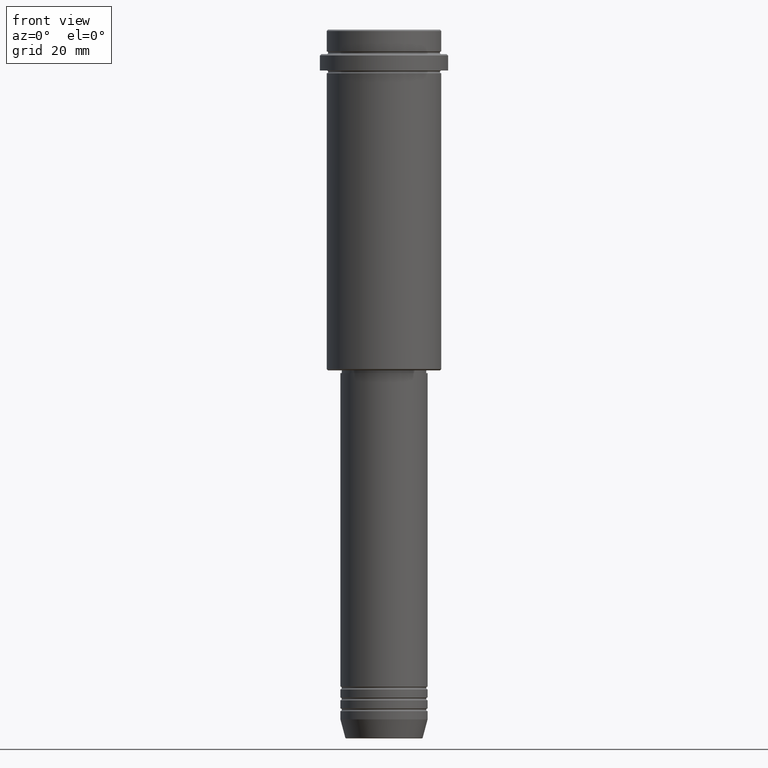
[diagram: clean part render]
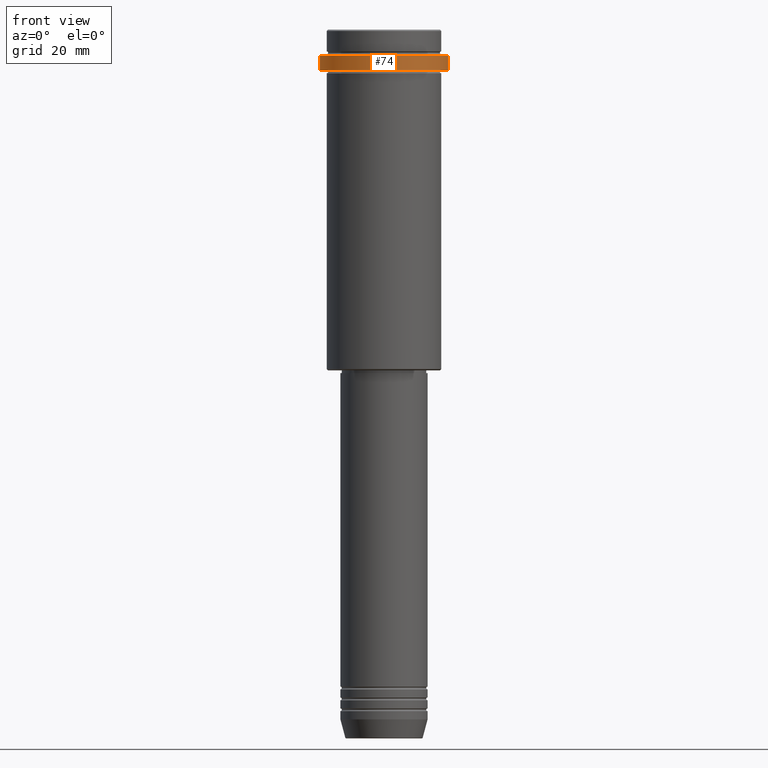
[diagram: same view with one face highlighted and labeled with its STEP entity id]
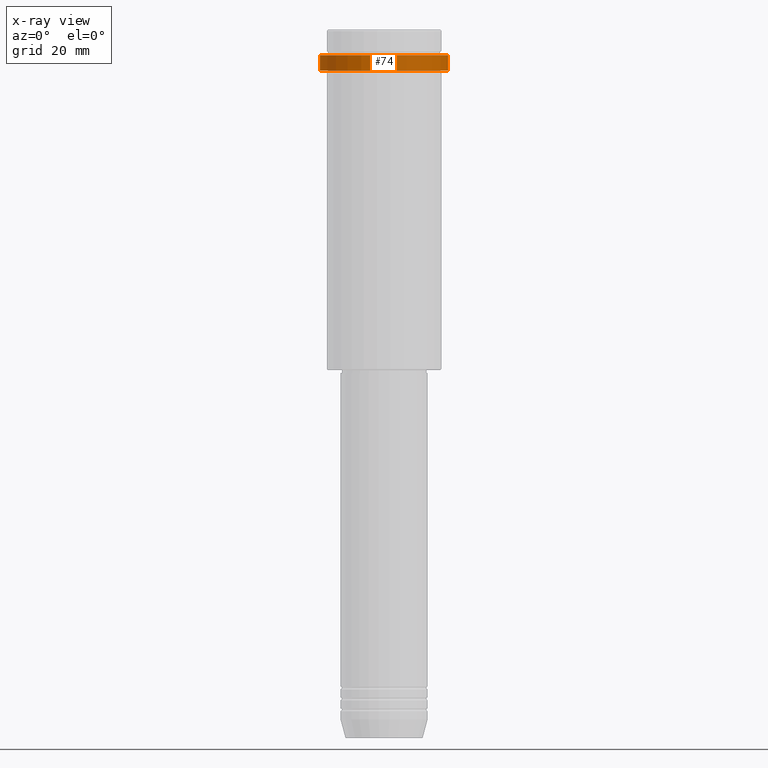
[diagram: x-ray of the same camera — body ghosted, the highlighted face saturated]
A machine part, front view. The second image highlights one B-rep face of the part: STEP entity #74.
The next image is the same camera in x-ray: the body ghosted, the highlighted face saturated — about 0% of this face is hidden behind the body in this view.
In plain terms, the highlighted cylindrical surface (partial cylindrical patch) has radius 23.5 mm, axis along (-0, -0, 1).
Its self-contained STEP definition (entity closure, byte-faithful):
#67 = CARTESIAN_POINT ( 'NONE',  ( -23.50000000000000711, 2.877919977996281109E-15, -15.00000000000000178 ) ) ;
#74 = ADVANCED_FACE ( 'NONE', ( #1121 ), #1264, .T. ) ;
#96 = DIRECTION ( 'NONE',  ( 1.000000000000000000, 0.000000000000000000, 0.000000000000000000 ) ) ;
#175 = EDGE_LOOP ( 'NONE', ( #753, #807, #344, #840 ) ) ;
#219 = VERTEX_POINT ( 'NONE', #827 ) ;
#294 = DIRECTION ( 'NONE',  ( 1.000000000000000000, 0.000000000000000000, 0.000000000000000000 ) ) ;
#339 = CARTESIAN_POINT ( 'NONE',  ( -23.50000000000000000, 2.877919977996280320E-15, 0.000000000000000000 ) ) ;
#344 = ORIENTED_EDGE ( 'NONE', *, *, #1146, .T. ) ;
#356 = DIRECTION ( 'NONE',  ( -0.000000000000000000, -0.000000000000000000, 1.000000000000000000 ) ) ;
#374 = VECTOR ( 'NONE', #920, 1000.000000000000000 ) ;
#388 = DIRECTION ( 'NONE',  ( 0.000000000000000000, 0.000000000000000000, -1.000000000000000000 ) ) ;
#400 = DIRECTION ( 'NONE',  ( -0.000000000000000000, -0.000000000000000000, 1.000000000000000000 ) ) ;
#406 = VERTEX_POINT ( 'NONE', #67 ) ;
#465 = AXIS2_PLACEMENT_3D ( 'NONE', #1092, #1286, #514 ) ;
#514 = DIRECTION ( 'NONE',  ( 1.000000000000000000, 0.000000000000000000, 0.000000000000000000 ) ) ;
#524 = EDGE_CURVE ( 'NONE', #406, #219, #1336, .T. ) ;
#753 = ORIENTED_EDGE ( 'NONE', *, *, #1150, .F. ) ;
#795 = CARTESIAN_POINT ( 'NONE',  ( 23.50000000000000000, 0.000000000000000000, 0.000000000000000000 ) ) ;
#807 = ORIENTED_EDGE ( 'NONE', *, *, #524, .T. ) ;
#808 = CARTESIAN_POINT ( 'NONE',  ( 23.50000000000000000, 0.000000000000000000, -9.500000000000001776 ) ) ;
#827 = CARTESIAN_POINT ( 'NONE',  ( 23.50000000000000355, 0.000000000000000000, -15.00000000000000178 ) ) ;
#831 = AXIS2_PLACEMENT_3D ( 'NONE', #1411, #400, #96 ) ;
#840 = ORIENTED_EDGE ( 'NONE', *, *, #1241, .T. ) ;
#885 = CARTESIAN_POINT ( 'NONE',  ( -23.50000000000000000, 2.877919977996280320E-15, -9.500000000000001776 ) ) ;
#920 = DIRECTION ( 'NONE',  ( -0.000000000000000000, -0.000000000000000000, 1.000000000000000000 ) ) ;
#927 = VECTOR ( 'NONE', #356, 1000.000000000000000 ) ;
#928 = CARTESIAN_POINT ( 'NONE',  ( 0.000000000000000000, 0.000000000000000000, -9.500000000000001776 ) ) ;
#1022 = VERTEX_POINT ( 'NONE', #885 ) ;
#1092 = CARTESIAN_POINT ( 'NONE',  ( 0.000000000000000000, 0.000000000000000000, -15.00000000000000178 ) ) ;
#1121 = FACE_OUTER_BOUND ( 'NONE', #175, .T. ) ;
#1146 = EDGE_CURVE ( 'NONE', #219, #1188, #1238, .T. ) ;
#1150 = EDGE_CURVE ( 'NONE', #406, #1022, #1329, .T. ) ;
#1188 = VERTEX_POINT ( 'NONE', #808 ) ;
#1195 = AXIS2_PLACEMENT_3D ( 'NONE', #928, #388, #294 ) ;
#1238 = LINE ( 'NONE', #795, #927 ) ;
#1241 = EDGE_CURVE ( 'NONE', #1188, #1022, #1296, .T. ) ;
#1264 = CYLINDRICAL_SURFACE ( 'NONE', #831, 23.50000000000000000 ) ;
#1286 = DIRECTION ( 'NONE',  ( -0.000000000000000000, -0.000000000000000000, 1.000000000000000000 ) ) ;
#1296 = CIRCLE ( 'NONE', #1195, 23.50000000000000000 ) ;
#1329 = LINE ( 'NONE', #339, #374 ) ;
#1336 = CIRCLE ( 'NONE', #465, 23.50000000000000355 ) ;
#1411 = CARTESIAN_POINT ( 'NONE',  ( 0.000000000000000000, 0.000000000000000000, 0.000000000000000000 ) ) ;